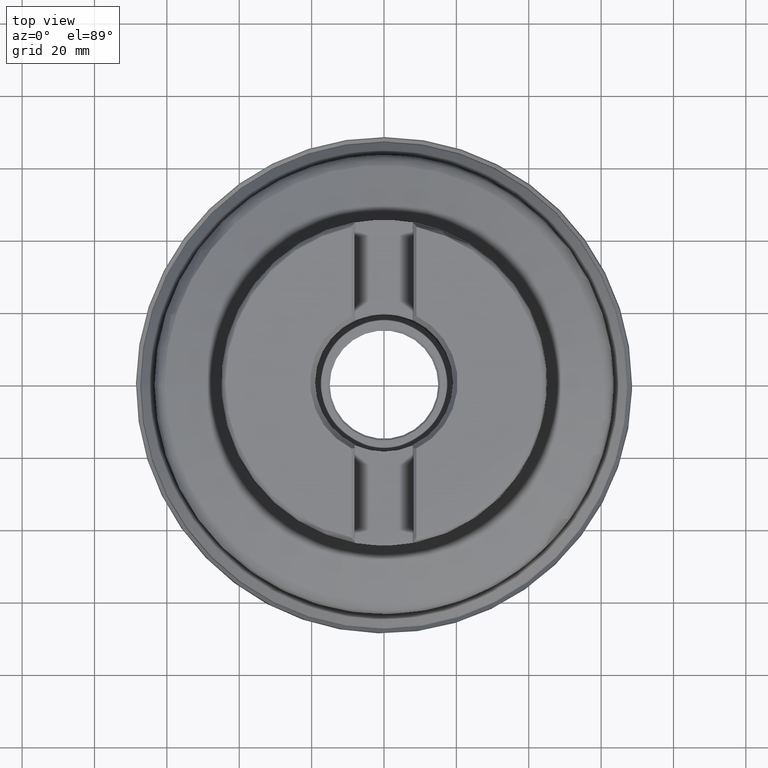
[diagram: clean part render]
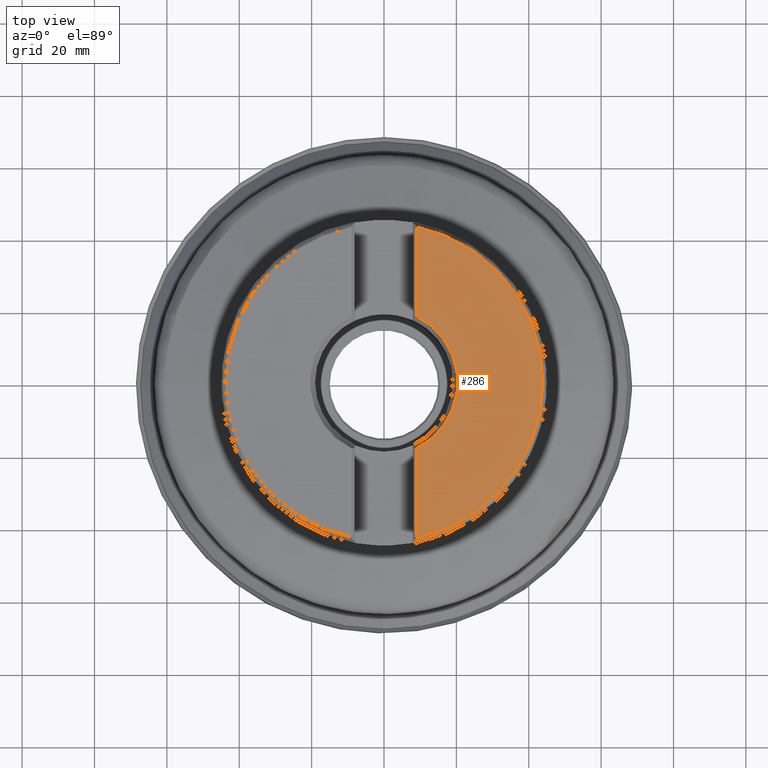
[diagram: same view with one face highlighted and labeled with its STEP entity id]
A machine part, top view. The second image highlights one B-rep face of the part: STEP entity #286.
In plain terms, the highlighted planar face has unit normal (0, 0, 1).
Its self-contained STEP definition (entity closure, byte-faithful):
#153=PLANE('',#1134);
#188=LINE('',#1881,#220);
#189=LINE('',#1882,#221);
#220=VECTOR('',#1284,1.);
#221=VECTOR('',#1285,1.);
#258=FACE_OUTER_BOUND('',#473,.T.);
#286=ADVANCED_FACE('',(#258),#153,.T.);
#473=EDGE_LOOP('',(#635,#636,#637,#638));
#635=ORIENTED_EDGE('',*,*,#894,.F.);
#636=ORIENTED_EDGE('',*,*,#938,.T.);
#637=ORIENTED_EDGE('',*,*,#904,.T.);
#638=ORIENTED_EDGE('',*,*,#939,.T.);
#805=VERTEX_POINT('',#1602);
#806=VERTEX_POINT('',#1604);
#815=VERTEX_POINT('',#1634);
#816=VERTEX_POINT('',#1635);
#894=EDGE_CURVE('',#805,#806,#1001,.T.);
#904=EDGE_CURVE('',#815,#816,#1005,.T.);
#938=EDGE_CURVE('',#805,#815,#188,.T.);
#939=EDGE_CURVE('',#816,#806,#189,.T.);
#1001=CIRCLE('',#1111,20.3779056191361);
#1005=CIRCLE('',#1120,43.8717797887081);
#1111=AXIS2_PLACEMENT_3D('',#1603,#1230,#1231);
#1120=AXIS2_PLACEMENT_3D('',#1633,#1248,#1249);
#1134=AXIS2_PLACEMENT_3D('',#1883,#1286,#1287);
#1230=DIRECTION('',(1.17145536458253E-15,1.33226762955019E-15,1.));
#1231=DIRECTION('',(-1.,3.1641356201817E-15,1.02153195234026E-15));
#1248=DIRECTION('',(1.17145536458253E-15,1.33226762955019E-15,1.));
#1249=DIRECTION('',(-1.,3.1641356201817E-15,1.10714125484037E-15));
#1284=DIRECTION('',(-3.16413562018169E-15,-1.,1.33226762955019E-15));
#1285=DIRECTION('',(-3.16413562018169E-15,-1.,1.33226762955019E-15));
#1286=DIRECTION('',(1.17145536458253E-15,1.33226762955019E-15,1.));
#1287=DIRECTION('',(-1.,3.1641356201817E-15,1.17267306976032E-15));
#1602=CARTESIAN_POINT('',(8.94,-18.3121663770953,57.15));
#1603=CARTESIAN_POINT('',(6.69486740858915E-14,7.61390950287932E-14,57.15));
#1604=CARTESIAN_POINT('',(8.94000000000012,18.3121663770954,57.15));
#1633=CARTESIAN_POINT('',(6.69486740858915E-14,7.61390950287932E-14,57.15));
#1634=CARTESIAN_POINT('',(8.93999999999993,-42.9512451720424,57.15));
#1635=CARTESIAN_POINT('',(8.9400000000002,42.9512451720425,57.1499999999999));
#1881=CARTESIAN_POINT('',(8.94000000000006,4.78517225843689E-14,57.15));
#1882=CARTESIAN_POINT('',(8.94000000000006,4.78517225843689E-14,57.15));
#1883=CARTESIAN_POINT('',(6.69486740858915E-14,7.61390950287932E-14,57.15));